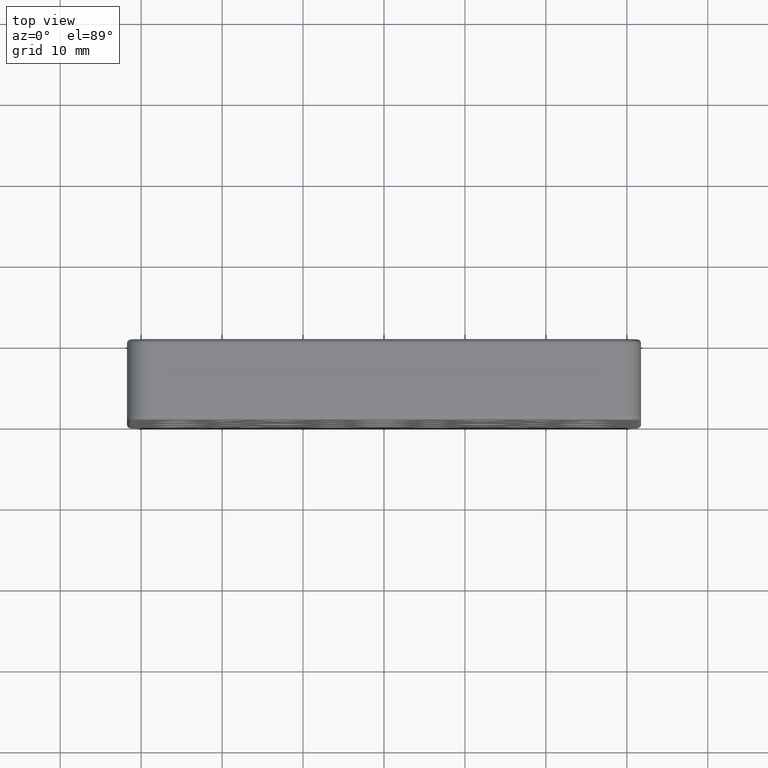
[diagram: clean part render]
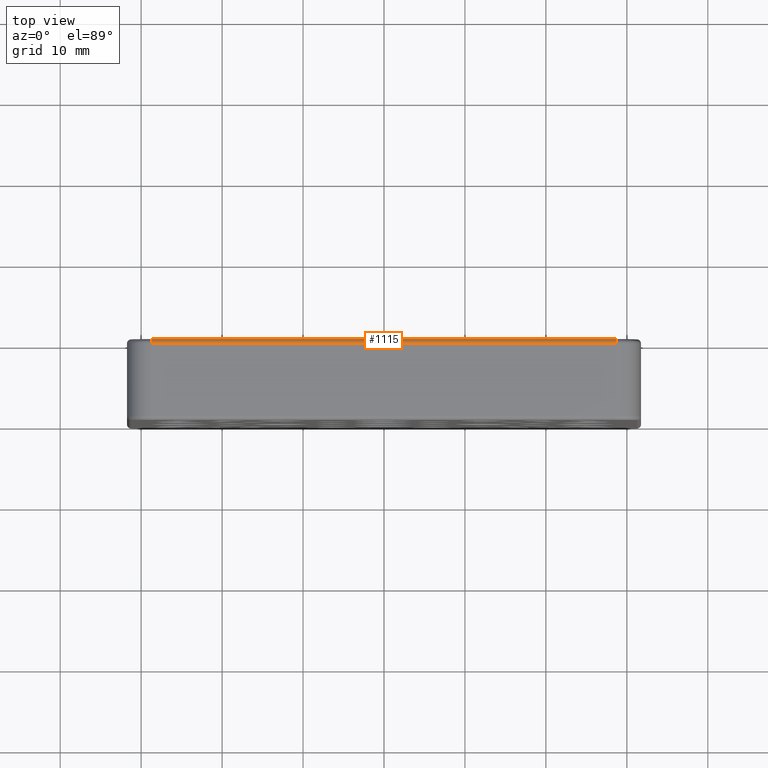
[diagram: same view with one face highlighted and labeled with its STEP entity id]
A machine part, top view. The second image highlights one B-rep face of the part: STEP entity #1115.
In plain terms, the highlighted cylindrical surface (edge-blend (fillet) strip) has radius 0.5 mm, axis along (-1, 0, 0).
Its self-contained STEP definition (entity closure, byte-faithful):
#32 = VERTEX_POINT ( 'NONE', #3047 ) ;
#279 = LINE ( 'NONE', #1458, #3861 ) ;
#288 = ORIENTED_EDGE ( 'NONE', *, *, #1065, .F. ) ;
#354 = DIRECTION ( 'NONE',  ( 1.000000000000000000, 0.000000000000000000, 0.000000000000000000 ) ) ;
#370 = DIRECTION ( 'NONE',  ( -1.000000000000000000, 0.000000000000000000, 0.000000000000000000 ) ) ;
#372 = VERTEX_POINT ( 'NONE', #1989 ) ;
#456 = ORIENTED_EDGE ( 'NONE', *, *, #2286, .F. ) ;
#704 = DIRECTION ( 'NONE',  ( 0.000000000000000000, 0.000000000000000000, -1.000000000000000000 ) ) ;
#712 = CARTESIAN_POINT ( 'NONE',  ( 28.75000000000001066, 9.500000000000000000, 31.25000000000000000 ) ) ;
#721 = ORIENTED_EDGE ( 'NONE', *, *, #3079, .F. ) ;
#888 = CARTESIAN_POINT ( 'NONE',  ( -28.74999999999998579, 9.500000000000000000, 31.75000000000000000 ) ) ;
#890 = EDGE_CURVE ( 'NONE', #1531, #372, #1139, .T. ) ;
#1008 = DIRECTION ( 'NONE',  ( 0.000000000000000000, 0.000000000000000000, 1.000000000000000000 ) ) ;
#1026 = FACE_OUTER_BOUND ( 'NONE', #1706, .T. ) ;
#1065 = EDGE_CURVE ( 'NONE', #32, #372, #3692, .T. ) ;
#1115 = ADVANCED_FACE ( 'NONE', ( #1026 ), #2806, .T. ) ;
#1139 = CIRCLE ( 'NONE', #1281, 0.5000000000000004441 ) ;
#1253 = CARTESIAN_POINT ( 'NONE',  ( 0.000000000000000000, 9.500000000000000000, 31.25000000000000000 ) ) ;
#1281 = AXIS2_PLACEMENT_3D ( 'NONE', #2558, #3502, #704 ) ;
#1458 = CARTESIAN_POINT ( 'NONE',  ( 28.75000000000001066, 10.00000000000000000, 31.25000000000000000 ) ) ;
#1503 = CIRCLE ( 'NONE', #3804, 0.5000000000000004441 ) ;
#1531 = VERTEX_POINT ( 'NONE', #1733 ) ;
#1643 = CARTESIAN_POINT ( 'NONE',  ( 28.75000000000001066, 10.00000000000000000, 31.25000000000000000 ) ) ;
#1706 = EDGE_LOOP ( 'NONE', ( #3387, #288, #456, #721 ) ) ;
#1733 = CARTESIAN_POINT ( 'NONE',  ( -28.74999999999998579, 10.00000000000000000, 31.25000000000000000 ) ) ;
#1989 = CARTESIAN_POINT ( 'NONE',  ( -28.74999999999998579, 9.500000000000000000, 31.75000000000000000 ) ) ;
#2122 = DIRECTION ( 'NONE',  ( -1.000000000000000000, -0.000000000000000000, -0.000000000000000000 ) ) ;
#2286 = EDGE_CURVE ( 'NONE', #2429, #32, #1503, .T. ) ;
#2429 = VERTEX_POINT ( 'NONE', #1643 ) ;
#2558 = CARTESIAN_POINT ( 'NONE',  ( -28.74999999999998579, 9.500000000000000000, 31.25000000000000000 ) ) ;
#2567 = DIRECTION ( 'NONE',  ( 0.000000000000000000, 0.000000000000000000, -1.000000000000000000 ) ) ;
#2611 = AXIS2_PLACEMENT_3D ( 'NONE', #1253, #370, #1008 ) ;
#2806 = CYLINDRICAL_SURFACE ( 'NONE', #2611, 0.5000000000000004441 ) ;
#3047 = CARTESIAN_POINT ( 'NONE',  ( 28.75000000000001066, 9.500000000000000000, 31.75000000000000000 ) ) ;
#3079 = EDGE_CURVE ( 'NONE', #1531, #2429, #279, .T. ) ;
#3387 = ORIENTED_EDGE ( 'NONE', *, *, #890, .T. ) ;
#3502 = DIRECTION ( 'NONE',  ( 1.000000000000000000, 0.000000000000000000, 0.000000000000000000 ) ) ;
#3513 = VECTOR ( 'NONE', #2122, 1000.000000000000000 ) ;
#3692 = LINE ( 'NONE', #888, #3513 ) ;
#3804 = AXIS2_PLACEMENT_3D ( 'NONE', #712, #354, #2567 ) ;
#3861 = VECTOR ( 'NONE', #4020, 1000.000000000000000 ) ;
#4020 = DIRECTION ( 'NONE',  ( 1.000000000000000000, -0.000000000000000000, 0.000000000000000000 ) ) ;